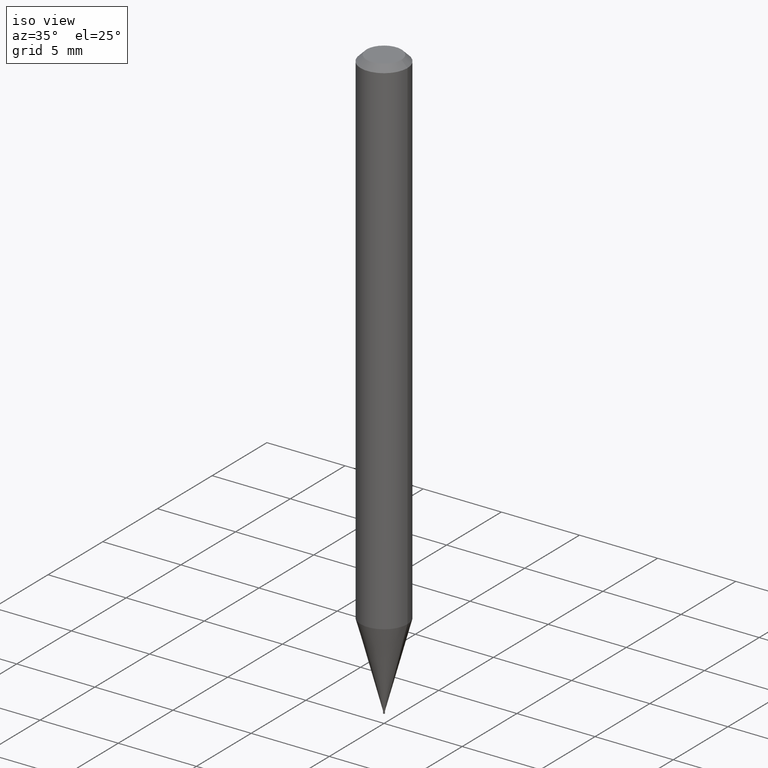
[diagram: clean part render]
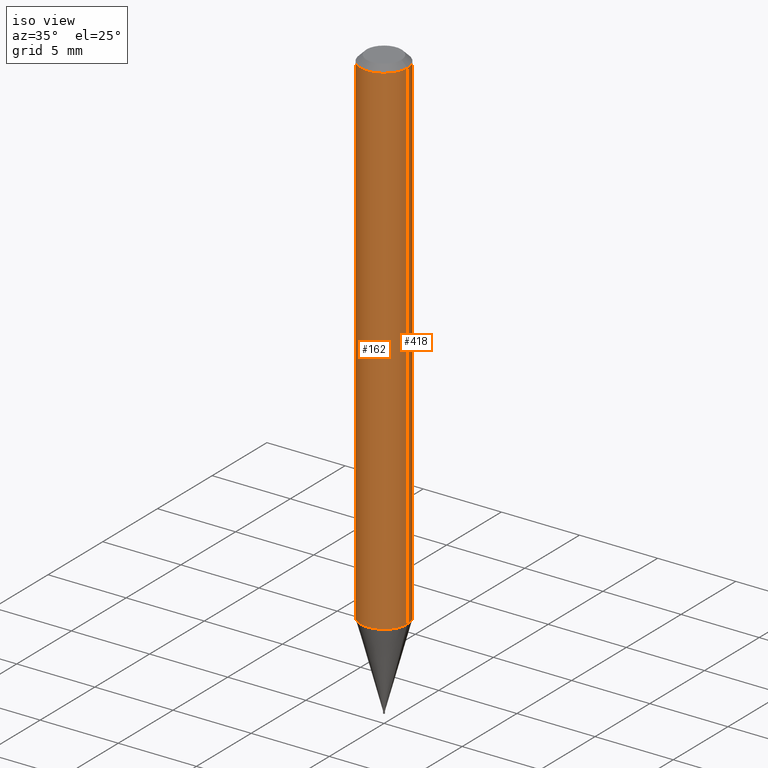
[diagram: same view with one multi-face feature highlighted, each face labeled with its STEP entity id]
A machine part, iso view. The highlighted faces form ONE feature: a constant-radius fillet chain: 2 tangent blend faces with common blend radius 1.4999 mm. The faces share edges in the B-rep.
Their STEP definitions:
[1] entity #418 (Cylinder):
#5 = CIRCLE ( 'NONE', #436, 0.05904999999999999832 ) ;
#17 = ORIENTED_EDGE ( 'NONE', *, *, #143, .T. ) ;
#19 = CARTESIAN_POINT ( 'NONE',  ( 0.05904999999999999138, -4.884931188144145618E-15, -1.280999898887817512 ) ) ;
#22 = EDGE_CURVE ( 'NONE', #245, #427, #211, .T. ) ;
#25 = EDGE_CURVE ( 'NONE', #208, #152, #5, .T. ) ;
#30 = CARTESIAN_POINT ( 'NONE',  ( 3.132645293456470975E-29, -4.472587242026771486E-15, -1.280999898887817512 ) ) ;
#32 = DIRECTION ( 'NONE',  ( -2.445468806185136597E-29, 3.491481338843145583E-15, 1.000000000000000000 ) ) ;
#38 = DIRECTION ( 'NONE',  ( 1.000000000000000000, -6.982962677686266711E-15, 0.000000000000000000 ) ) ;
#84 = CARTESIAN_POINT ( 'NONE',  ( -0.05904999999999999832, -1.842904245588369987E-15, -0.01499999999999999944 ) ) ;
#139 = CARTESIAN_POINT ( 'NONE',  ( 0.05904999999999999832, -4.647161662000212105E-16, -0.01499999999999999944 ) ) ;
#143 = EDGE_CURVE ( 'NONE', #427, #152, #296, .T. ) ;
#152 = VERTEX_POINT ( 'NONE', #84 ) ;
#183 = CARTESIAN_POINT ( 'NONE',  ( 3.668203209277705088E-31, -5.237222008264718399E-17, -0.01499999999999999944 ) ) ;
#186 = EDGE_LOOP ( 'NONE', ( #452, #17, #230, #310 ) ) ;
#187 = CARTESIAN_POINT ( 'NONE',  ( 0.000000000000000000, 0.000000000000000000, 0.000000000000000000 ) ) ;
#208 = VERTEX_POINT ( 'NONE', #139 ) ;
#211 = CIRCLE ( 'NONE', #256, 0.05904999999999999832 ) ;
#214 = CYLINDRICAL_SURFACE ( 'NONE', #250, 0.05904999999999999832 ) ;
#215 = DIRECTION ( 'NONE',  ( 1.000000000000000000, -6.982962677686273021E-15, 0.000000000000000000 ) ) ;
#216 = FACE_OUTER_BOUND ( 'NONE', #186, .T. ) ;
#221 = DIRECTION ( 'NONE',  ( -2.445468806185136877E-29, 3.491481338843145188E-15, 1.000000000000000000 ) ) ;
#230 = ORIENTED_EDGE ( 'NONE', *, *, #25, .F. ) ;
#244 = CARTESIAN_POINT ( 'NONE',  ( -0.05904999999999999138, -4.053011756560431993E-15, -1.280999898887817512 ) ) ;
#245 = VERTEX_POINT ( 'NONE', #19 ) ;
#250 = AXIS2_PLACEMENT_3D ( 'NONE', #187, #351, #391 ) ;
#256 = AXIS2_PLACEMENT_3D ( 'NONE', #30, #32, #215 ) ;
#290 = CARTESIAN_POINT ( 'NONE',  ( -0.05904999999999999832, 4.195754854663391478E-16, -2.904631170795521892E-30 ) ) ;
#296 = LINE ( 'NONE', #290, #401 ) ;
#298 = DIRECTION ( 'NONE',  ( -2.445468806185136877E-29, 3.491481338843145188E-15, 1.000000000000000000 ) ) ;
#307 = VECTOR ( 'NONE', #298, 39.37007874015748143 ) ;
#310 = ORIENTED_EDGE ( 'NONE', *, *, #371, .F. ) ;
#351 = DIRECTION ( 'NONE',  ( -2.445468806185136597E-29, 3.491481338843145583E-15, 1.000000000000000000 ) ) ;
#371 = EDGE_CURVE ( 'NONE', #245, #208, #414, .T. ) ;
#391 = DIRECTION ( 'NONE',  ( 1.000000000000000000, -6.982962677686266711E-15, 4.876176775795936353E-29 ) ) ;
#401 = VECTOR ( 'NONE', #221, 39.37007874015748143 ) ;
#414 = LINE ( 'NONE', #456, #307 ) ;
#418 = ADVANCED_FACE ( 'NONE', ( #216 ), #214, .T. ) ;
#425 = DIRECTION ( 'NONE',  ( -2.445468806185136597E-29, 3.491481338843145583E-15, 1.000000000000000000 ) ) ;
#427 = VERTEX_POINT ( 'NONE', #244 ) ;
#436 = AXIS2_PLACEMENT_3D ( 'NONE', #183, #425, #38 ) ;
#452 = ORIENTED_EDGE ( 'NONE', *, *, #22, .T. ) ;
#456 = CARTESIAN_POINT ( 'NONE',  ( 0.05904999999999999832, -4.123439461173740327E-16, 2.879382386107500220E-30 ) ) ;
[2] entity #162 (Cylinder):
#3 = ORIENTED_EDGE ( 'NONE', *, *, #143, .F. ) ;
#4 = DIRECTION ( 'NONE',  ( 1.000000000000000000, -6.982962677686266711E-15, 0.000000000000000000 ) ) ;
#7 = FACE_OUTER_BOUND ( 'NONE', #397, .T. ) ;
#11 = CIRCLE ( 'NONE', #314, 0.05904999999999999832 ) ;
#19 = CARTESIAN_POINT ( 'NONE',  ( 0.05904999999999999138, -4.884931188144145618E-15, -1.280999898887817512 ) ) ;
#39 = DIRECTION ( 'NONE',  ( 1.000000000000000000, -6.982962677686266711E-15, 4.876176775795936353E-29 ) ) ;
#74 = EDGE_CURVE ( 'NONE', #152, #208, #408, .T. ) ;
#84 = CARTESIAN_POINT ( 'NONE',  ( -0.05904999999999999832, -1.842904245588369987E-15, -0.01499999999999999944 ) ) ;
#85 = DIRECTION ( 'NONE',  ( -2.445468806185136597E-29, 3.491481338843145583E-15, 1.000000000000000000 ) ) ;
#96 = AXIS2_PLACEMENT_3D ( 'NONE', #446, #120, #4 ) ;
#120 = DIRECTION ( 'NONE',  ( -2.445468806185136597E-29, 3.491481338843145583E-15, 1.000000000000000000 ) ) ;
#139 = CARTESIAN_POINT ( 'NONE',  ( 0.05904999999999999832, -4.647161662000212105E-16, -0.01499999999999999944 ) ) ;
#143 = EDGE_CURVE ( 'NONE', #427, #152, #296, .T. ) ;
#152 = VERTEX_POINT ( 'NONE', #84 ) ;
#162 = ADVANCED_FACE ( 'NONE', ( #7 ), #328, .T. ) ;
#176 = EDGE_CURVE ( 'NONE', #427, #245, #11, .T. ) ;
#201 = ORIENTED_EDGE ( 'NONE', *, *, #176, .T. ) ;
#203 = ORIENTED_EDGE ( 'NONE', *, *, #371, .T. ) ;
#208 = VERTEX_POINT ( 'NONE', #139 ) ;
#221 = DIRECTION ( 'NONE',  ( -2.445468806185136877E-29, 3.491481338843145188E-15, 1.000000000000000000 ) ) ;
#225 = DIRECTION ( 'NONE',  ( 1.000000000000000000, -6.982962677686273021E-15, 0.000000000000000000 ) ) ;
#244 = CARTESIAN_POINT ( 'NONE',  ( -0.05904999999999999138, -4.053011756560431993E-15, -1.280999898887817512 ) ) ;
#245 = VERTEX_POINT ( 'NONE', #19 ) ;
#289 = CARTESIAN_POINT ( 'NONE',  ( 3.132645293456470975E-29, -4.472587242026771486E-15, -1.280999898887817512 ) ) ;
#290 = CARTESIAN_POINT ( 'NONE',  ( -0.05904999999999999832, 4.195754854663391478E-16, -2.904631170795521892E-30 ) ) ;
#296 = LINE ( 'NONE', #290, #401 ) ;
#297 = CARTESIAN_POINT ( 'NONE',  ( 0.000000000000000000, 0.000000000000000000, 0.000000000000000000 ) ) ;
#298 = DIRECTION ( 'NONE',  ( -2.445468806185136877E-29, 3.491481338843145188E-15, 1.000000000000000000 ) ) ;
#307 = VECTOR ( 'NONE', #298, 39.37007874015748143 ) ;
#314 = AXIS2_PLACEMENT_3D ( 'NONE', #289, #438, #225 ) ;
#328 = CYLINDRICAL_SURFACE ( 'NONE', #395, 0.05904999999999999832 ) ;
#343 = ORIENTED_EDGE ( 'NONE', *, *, #74, .F. ) ;
#371 = EDGE_CURVE ( 'NONE', #245, #208, #414, .T. ) ;
#395 = AXIS2_PLACEMENT_3D ( 'NONE', #297, #85, #39 ) ;
#397 = EDGE_LOOP ( 'NONE', ( #3, #201, #203, #343 ) ) ;
#401 = VECTOR ( 'NONE', #221, 39.37007874015748143 ) ;
#408 = CIRCLE ( 'NONE', #96, 0.05904999999999999832 ) ;
#414 = LINE ( 'NONE', #456, #307 ) ;
#427 = VERTEX_POINT ( 'NONE', #244 ) ;
#438 = DIRECTION ( 'NONE',  ( -2.445468806185136597E-29, 3.491481338843145583E-15, 1.000000000000000000 ) ) ;
#446 = CARTESIAN_POINT ( 'NONE',  ( 3.668203209277705088E-31, -5.237222008264718399E-17, -0.01499999999999999944 ) ) ;
#456 = CARTESIAN_POINT ( 'NONE',  ( 0.05904999999999999832, -4.123439461173740327E-16, 2.879382386107500220E-30 ) ) ;